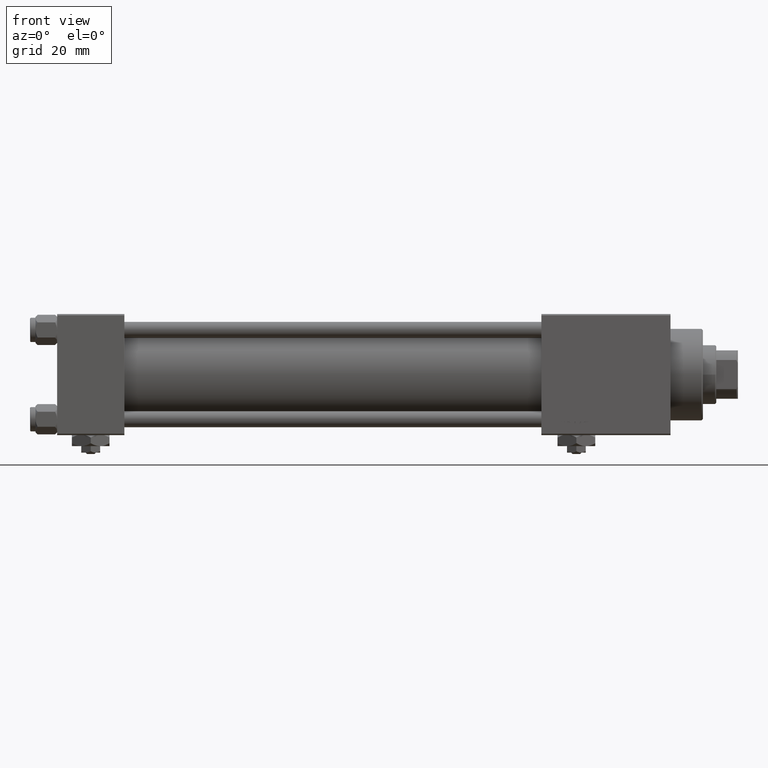
[diagram: clean part render]
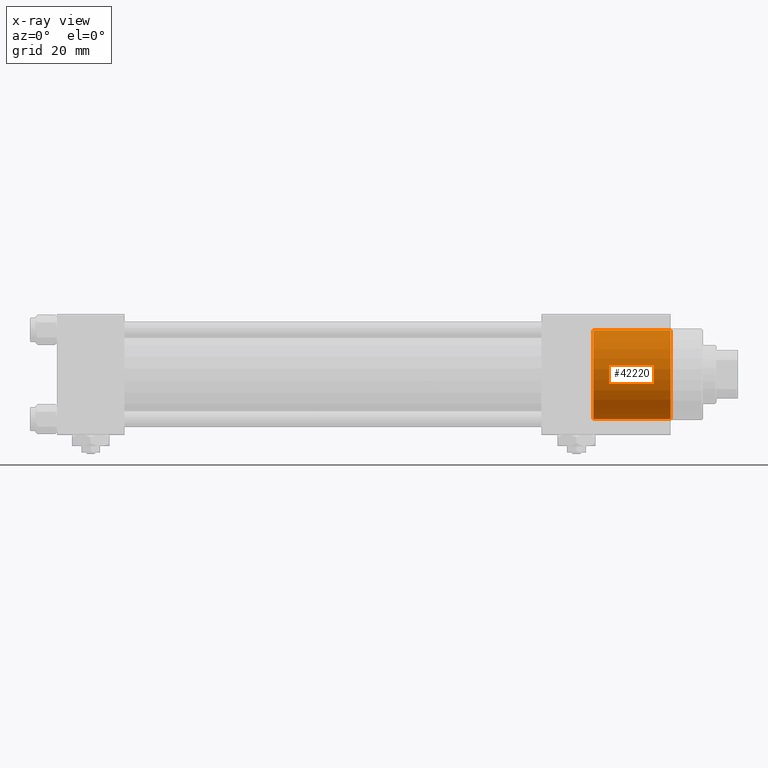
[diagram: x-ray — body ghosted, one internal face saturated and labeled with its STEP entity id]
A machine part, front view, then the same camera in x-ray: the body is ghosted and one INTERNAL B-rep face — a face not visible from any outside direction — is saturated and labeled: STEP entity #42220.
In plain terms, the highlighted cylindrical surface (partial cylindrical patch) has radius 16.5 mm, axis along (-1, -0, -0).
Its self-contained STEP definition (entity closure, byte-faithful):
#854 = CARTESIAN_POINT ( 'NONE',  ( 16.50000000000000000, 2.020667218593133100E-15, 28.69999999999999929 ) ) ;
#1576 = LINE ( 'NONE', #30099, #14264 ) ;
#3649 = CARTESIAN_POINT ( 'NONE',  ( -16.50000000000000000, 0.000000000000000000, 0.000000000000000000 ) ) ;
#4267 = DIRECTION ( 'NONE',  ( 1.000000000000000000, 0.000000000000000000, 0.000000000000000000 ) ) ;
#4585 = LINE ( 'NONE', #854, #33924 ) ;
#5896 = VERTEX_POINT ( 'NONE', #22651 ) ;
#7043 = EDGE_LOOP ( 'NONE', ( #34328, #7446, #41375, #18566 ) ) ;
#7446 = ORIENTED_EDGE ( 'NONE', *, *, #22817, .F. ) ;
#8470 = CARTESIAN_POINT ( 'NONE',  ( 0.000000000000000000, 0.000000000000000000, 28.69999999999999929 ) ) ;
#9358 = AXIS2_PLACEMENT_3D ( 'NONE', #8470, #24580, #12974 ) ;
#12974 = DIRECTION ( 'NONE',  ( 1.000000000000000000, 0.000000000000000000, 0.000000000000000000 ) ) ;
#13046 = DIRECTION ( 'NONE',  ( -0.000000000000000000, -0.000000000000000000, -1.000000000000000000 ) ) ;
#14065 = EDGE_CURVE ( 'NONE', #20989, #5896, #30700, .T. ) ;
#14264 = VECTOR ( 'NONE', #30618, 1000.000000000000000 ) ;
#15556 = FACE_OUTER_BOUND ( 'NONE', #7043, .T. ) ;
#16436 = CARTESIAN_POINT ( 'NONE',  ( 0.000000000000000000, 0.000000000000000000, 0.000000000000000000 ) ) ;
#18566 = ORIENTED_EDGE ( 'NONE', *, *, #14065, .T. ) ;
#19775 = CYLINDRICAL_SURFACE ( 'NONE', #24316, 16.50000000000000000 ) ;
#20989 = VERTEX_POINT ( 'NONE', #3649 ) ;
#22651 = CARTESIAN_POINT ( 'NONE',  ( 16.50000000000000000, 2.020667218593133100E-15, 0.000000000000000000 ) ) ;
#22817 = EDGE_CURVE ( 'NONE', #28905, #35287, #48090, .T. ) ;
#24316 = AXIS2_PLACEMENT_3D ( 'NONE', #39792, #51930, #35594 ) ;
#24580 = DIRECTION ( 'NONE',  ( 0.000000000000000000, 0.000000000000000000, 1.000000000000000000 ) ) ;
#25316 = EDGE_CURVE ( 'NONE', #35287, #5896, #4585, .T. ) ;
#26484 = AXIS2_PLACEMENT_3D ( 'NONE', #16436, #45155, #4267 ) ;
#28905 = VERTEX_POINT ( 'NONE', #33881 ) ;
#30099 = CARTESIAN_POINT ( 'NONE',  ( -16.50000000000000000, 0.000000000000000000, 28.69999999999999929 ) ) ;
#30618 = DIRECTION ( 'NONE',  ( -0.000000000000000000, -0.000000000000000000, -1.000000000000000000 ) ) ;
#30700 = CIRCLE ( 'NONE', #26484, 16.50000000000000000 ) ;
#33881 = CARTESIAN_POINT ( 'NONE',  ( -16.50000000000000000, 0.000000000000000000, 28.69999999999999929 ) ) ;
#33924 = VECTOR ( 'NONE', #13046, 1000.000000000000000 ) ;
#34328 = ORIENTED_EDGE ( 'NONE', *, *, #25316, .F. ) ;
#35287 = VERTEX_POINT ( 'NONE', #39620 ) ;
#35594 = DIRECTION ( 'NONE',  ( -1.000000000000000000, 0.000000000000000000, 0.000000000000000000 ) ) ;
#39620 = CARTESIAN_POINT ( 'NONE',  ( 16.50000000000000000, 2.020667218593133100E-15, 28.69999999999999929 ) ) ;
#39792 = CARTESIAN_POINT ( 'NONE',  ( 0.000000000000000000, 0.000000000000000000, 28.69999999999999929 ) ) ;
#41375 = ORIENTED_EDGE ( 'NONE', *, *, #44113, .T. ) ;
#42220 = ADVANCED_FACE ( 'NONE', ( #15556 ), #19775, .T. ) ;
#44113 = EDGE_CURVE ( 'NONE', #28905, #20989, #1576, .T. ) ;
#45155 = DIRECTION ( 'NONE',  ( 0.000000000000000000, 0.000000000000000000, 1.000000000000000000 ) ) ;
#48090 = CIRCLE ( 'NONE', #9358, 16.50000000000000000 ) ;
#51930 = DIRECTION ( 'NONE',  ( -0.000000000000000000, -0.000000000000000000, -1.000000000000000000 ) ) ;